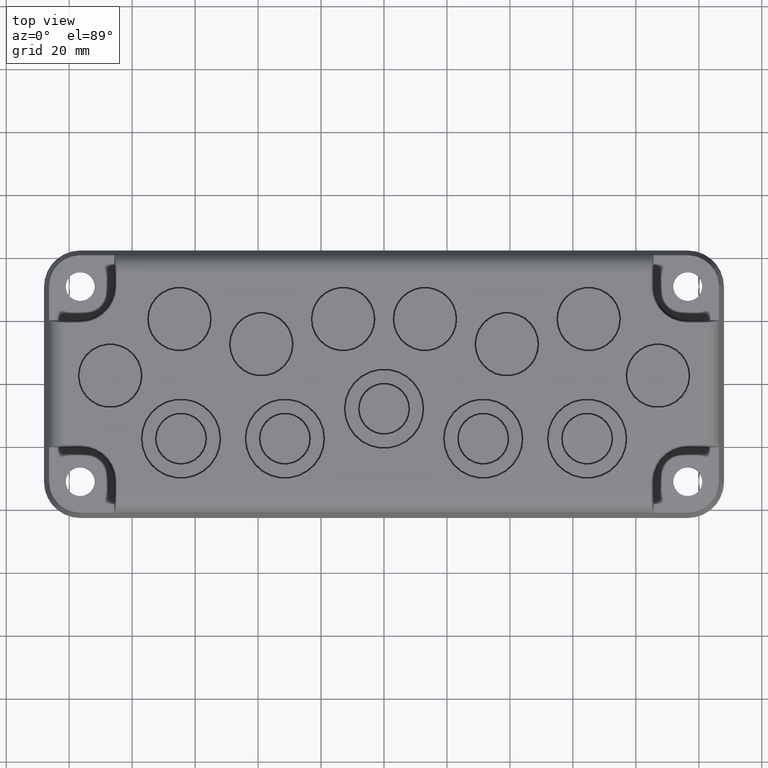
[diagram: clean part render]
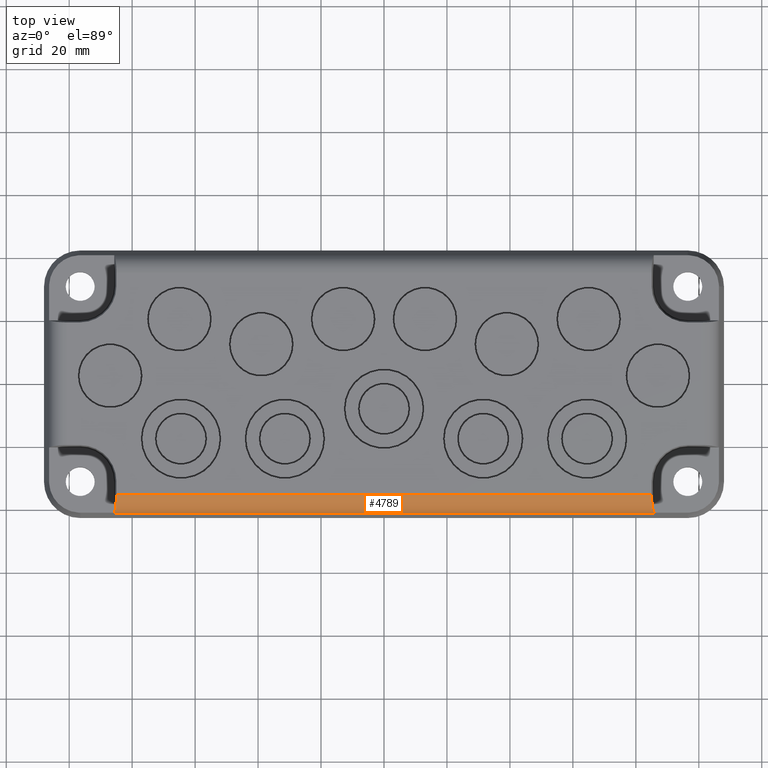
[diagram: same view with one face highlighted and labeled with its STEP entity id]
A machine part, top view. The second image highlights one B-rep face of the part: STEP entity #4789.
In plain terms, the highlighted cylindrical surface (edge-blend (fillet) strip) has radius 6 mm, axis along (-1, 0, 0).
Its self-contained STEP definition (entity closure, byte-faithful):
#14 = CARTESIAN_POINT ( 'NONE',  ( -97.11127714584783600, -40.87340039730742100, 6.000000000000000000 ) ) ;
#36 =( BOUNDED_CURVE ( )  B_SPLINE_CURVE ( 3, ( #3145, #4672, #48, #3197 ),
 .UNSPECIFIED., .F., .F. ) 
 B_SPLINE_CURVE_WITH_KNOTS ( ( 4, 4 ),
 ( -7.105427357601001900E-015, 1.230959417340767900 ),
 .UNSPECIFIED. ) 
 CURVE ( )  GEOMETRIC_REPRESENTATION_ITEM ( )  RATIONAL_B_SPLINE_CURVE ( ( 1.000000000000000000, 0.8776643872851505000, 0.8776643872851505000, 1.000000000000000000 ) ) 
 REPRESENTATION_ITEM ( '' )  );
#47 = CARTESIAN_POINT ( 'NONE',  ( 85.70530792283386700, -40.87340039730742100, 6.000000000000000000 ) ) ;
#48 = CARTESIAN_POINT ( 'NONE',  ( 85.26787305529379100, -39.99629934356556800, 8.480816411546916500 ) ) ;
#89 = VECTOR ( 'NONE', #1100, 1000.000000000000000 ) ;
#97 = CARTESIAN_POINT ( 'NONE',  ( -85.70530792283383900, -40.87340039730742100, 6.000000000000000000 ) ) ;
#135 = B_SPLINE_CURVE_WITH_KNOTS ( 'NONE', 3,
 ( #3922, #2357, #837, #2013 ),
 .UNSPECIFIED., .F., .F.,
 ( 4, 4 ),
 ( 0.0000000000000000000, 0.0007699298614042395300 ),
 .UNSPECIFIED. ) ;
#155 = FACE_OUTER_BOUND ( 'NONE', #419, .T. ) ;
#156 = CARTESIAN_POINT ( 'NONE',  ( -96.90804496335543700, -40.92568026178080500, 5.852130213245423800 ) ) ;
#257 = DIRECTION ( 'NONE',  ( -1.000000000000000000, -0.0000000000000000000, -0.0000000000000000000 ) ) ;
#282 = VERTEX_POINT ( 'NONE', #3761 ) ;
#289 = CARTESIAN_POINT ( 'NONE',  ( -96.50000000000000000, -35.21654614781503800, 4.000000000000000000 ) ) ;
#419 = EDGE_LOOP ( 'NONE', ( #457, #1224, #3521, #2042, #1340, #485, #1847, #878 ) ) ;
#436 = CARTESIAN_POINT ( 'NONE',  ( 85.00000000000001400, -35.21654614781503800, 10.00000000000000000 ) ) ;
#457 = ORIENTED_EDGE ( 'NONE', *, *, #4626, .F. ) ;
#485 = ORIENTED_EDGE ( 'NONE', *, *, #4265, .F. ) ;
#590 = CARTESIAN_POINT ( 'NONE',  ( -96.49999999999998600, -41.01210110554943400, 5.552914270615124400 ) ) ;
#612 = LINE ( 'NONE', #1663, #4140 ) ;
#758 = VERTEX_POINT ( 'NONE', #1274 ) ;
#837 = CARTESIAN_POINT ( 'NONE',  ( 96.70423657693545700, -40.97187724263601900, 5.703031770684666500 ) ) ;
#878 = ORIENTED_EDGE ( 'NONE', *, *, #2961, .F. ) ;
#899 = CARTESIAN_POINT ( 'NONE',  ( 96.49999999999998600, -41.01210110554939800, 5.552914270615115600 ) ) ;
#1100 = DIRECTION ( 'NONE',  ( 1.000000000000000000, -0.0000000000000000000, -0.0000000000000000000 ) ) ;
#1123 = LINE ( 'NONE', #590, #3416 ) ;
#1138 = EDGE_CURVE ( 'NONE', #1169, #758, #2749, .T. ) ;
#1169 = VERTEX_POINT ( 'NONE', #3971 ) ;
#1224 = ORIENTED_EDGE ( 'NONE', *, *, #4096, .F. ) ;
#1274 = CARTESIAN_POINT ( 'NONE',  ( -84.99999999999997200, -35.21654614781503800, 10.00000000000000000 ) ) ;
#1340 = ORIENTED_EDGE ( 'NONE', *, *, #3882, .F. ) ;
#1634 = VERTEX_POINT ( 'NONE', #14 ) ;
#1663 = CARTESIAN_POINT ( 'NONE',  ( 85.70530792283388200, -40.87340039730742100, 6.000000000000000000 ) ) ;
#1722 = CARTESIAN_POINT ( 'NONE',  ( -96.49999999999998600, -41.01210110554944100, 5.552914270615125300 ) ) ;
#1747 = EDGE_CURVE ( 'NONE', #3092, #282, #612, .T. ) ;
#1770 = DIRECTION ( 'NONE',  ( -1.000000000000000000, 0.0000000000000000000, 0.0000000000000000000 ) ) ;
#1847 = ORIENTED_EDGE ( 'NONE', *, *, #1138, .F. ) ;
#2013 = CARTESIAN_POINT ( 'NONE',  ( 96.49999999999998600, -41.01210110554939800, 5.552914270615115600 ) ) ;
#2042 = ORIENTED_EDGE ( 'NONE', *, *, #1747, .F. ) ;
#2115 = AXIS2_PLACEMENT_3D ( 'NONE', #289, #1770, #4466 ) ;
#2357 = CARTESIAN_POINT ( 'NONE',  ( 96.90804496335543700, -40.92568026178079800, 5.852130213245454000 ) ) ;
#2371 = B_SPLINE_CURVE_WITH_KNOTS ( 'NONE', 3,
 ( #1722, #4418, #156, #3237 ),
 .UNSPECIFIED., .F., .F.,
 ( 4, 4 ),
 ( -2.036201744878288900E-005, 0.0007495678439555324400 ),
 .UNSPECIFIED. ) ;
#2749 =( BOUNDED_CURVE ( )  B_SPLINE_CURVE ( 3, ( #97, #2860, #2786, #4346 ),
 .UNSPECIFIED., .F., .F. ) 
 B_SPLINE_CURVE_WITH_KNOTS ( ( 4, 4 ),
 ( 1.910633236249025700, 3.141592653589799800 ),
 .UNSPECIFIED. ) 
 CURVE ( )  GEOMETRIC_REPRESENTATION_ITEM ( )  RATIONAL_B_SPLINE_CURVE ( ( 1.000000000000000000, 0.8776643872851508400, 0.8776643872851508400, 1.000000000000000000 ) ) 
 REPRESENTATION_ITEM ( '' )  );
#2786 = CARTESIAN_POINT ( 'NONE',  ( -84.99999999999998600, -37.84784930904060500, 10.00000000000000200 ) ) ;
#2856 = DIRECTION ( 'NONE',  ( 1.000000000000000000, -0.0000000000000000000, -0.0000000000000000000 ) ) ;
#2860 = CARTESIAN_POINT ( 'NONE',  ( -85.26787305529374800, -39.99629934356556800, 8.480816411546914700 ) ) ;
#2961 = EDGE_CURVE ( 'NONE', #1634, #1169, #4795, .T. ) ;
#3007 = CYLINDRICAL_SURFACE ( 'NONE', #2115, 6.000000000000000000 ) ;
#3092 = VERTEX_POINT ( 'NONE', #47 ) ;
#3098 = DIRECTION ( 'NONE',  ( 1.000000000000000000, -0.0000000000000000000, -0.0000000000000000000 ) ) ;
#3145 = CARTESIAN_POINT ( 'NONE',  ( 85.00000000000001400, -35.21654614781503800, 10.00000000000000000 ) ) ;
#3197 = CARTESIAN_POINT ( 'NONE',  ( 85.70530792283386700, -40.87340039730742100, 6.000000000000000000 ) ) ;
#3237 = CARTESIAN_POINT ( 'NONE',  ( -97.11127714584783600, -40.87340039730742100, 6.000000000000000000 ) ) ;
#3299 = CARTESIAN_POINT ( 'NONE',  ( -96.49999999999998600, -41.01210110554944100, 5.552914270615125300 ) ) ;
#3405 = VERTEX_POINT ( 'NONE', #899 ) ;
#3416 = VECTOR ( 'NONE', #257, 1000.000000000000000 ) ;
#3428 = EDGE_CURVE ( 'NONE', #282, #3405, #135, .T. ) ;
#3447 = VERTEX_POINT ( 'NONE', #436 ) ;
#3499 = CARTESIAN_POINT ( 'NONE',  ( -97.11127714584783600, -40.87340039730742100, 6.000000000000000000 ) ) ;
#3521 = ORIENTED_EDGE ( 'NONE', *, *, #3428, .F. ) ;
#3761 = CARTESIAN_POINT ( 'NONE',  ( 97.11127714584783600, -40.87340039730742100, 6.000000000000000000 ) ) ;
#3811 = VECTOR ( 'NONE', #3098, 1000.000000000000000 ) ;
#3882 = EDGE_CURVE ( 'NONE', #3447, #3092, #36, .T. ) ;
#3922 = CARTESIAN_POINT ( 'NONE',  ( 97.11127714584783600, -40.87340039730742100, 6.000000000000000000 ) ) ;
#3971 = CARTESIAN_POINT ( 'NONE',  ( -85.70530792283383900, -40.87340039730742100, 6.000000000000000000 ) ) ;
#4078 = LINE ( 'NONE', #4527, #89 ) ;
#4096 = EDGE_CURVE ( 'NONE', #3405, #4597, #1123, .T. ) ;
#4140 = VECTOR ( 'NONE', #2856, 1000.000000000000000 ) ;
#4265 = EDGE_CURVE ( 'NONE', #758, #3447, #4078, .T. ) ;
#4346 = CARTESIAN_POINT ( 'NONE',  ( -84.99999999999997200, -35.21654614781503800, 10.00000000000000000 ) ) ;
#4418 = CARTESIAN_POINT ( 'NONE',  ( -96.70423657693220300, -40.97187724263493900, 5.703031770688710400 ) ) ;
#4466 = DIRECTION ( 'NONE',  ( 0.0000000000000000000, 0.0000000000000000000, 1.000000000000000000 ) ) ;
#4527 = CARTESIAN_POINT ( 'NONE',  ( -96.50000000000000000, -35.21654614781503800, 10.00000000000000000 ) ) ;
#4597 = VERTEX_POINT ( 'NONE', #3299 ) ;
#4626 = EDGE_CURVE ( 'NONE', #4597, #1634, #2371, .T. ) ;
#4672 = CARTESIAN_POINT ( 'NONE',  ( 85.00000000000001400, -37.84784930904059100, 10.00000000000000200 ) ) ;
#4789 = ADVANCED_FACE ( 'NONE', ( #155 ), #3007, .T. ) ;
#4795 = LINE ( 'NONE', #3499, #3811 ) ;